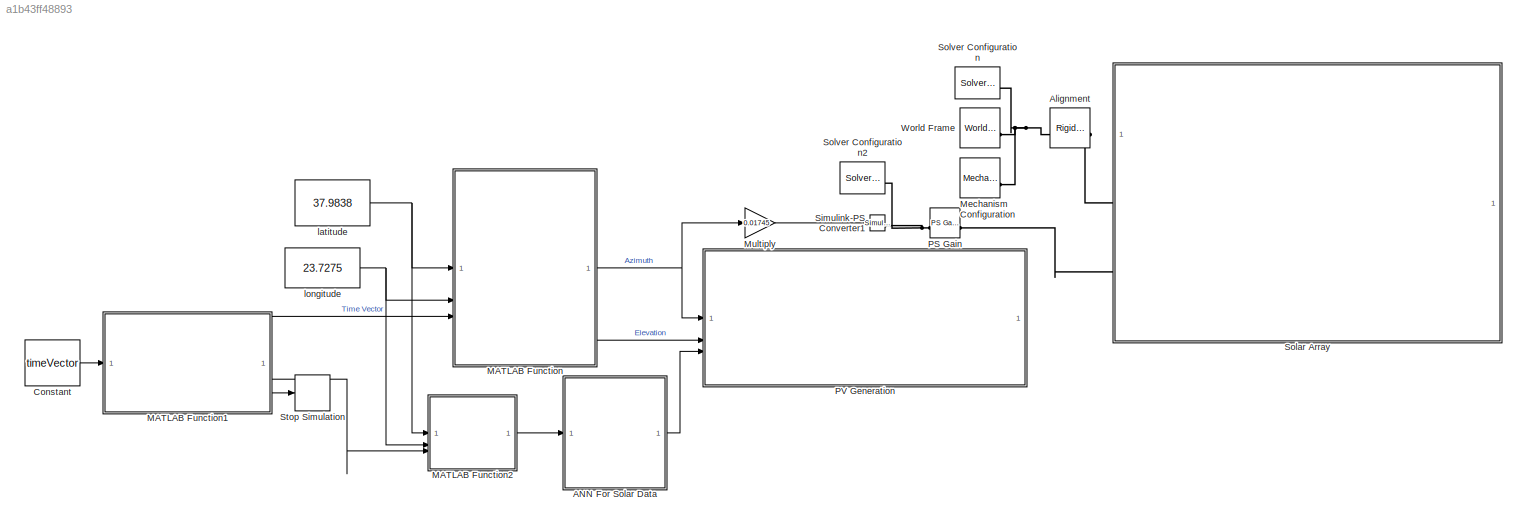
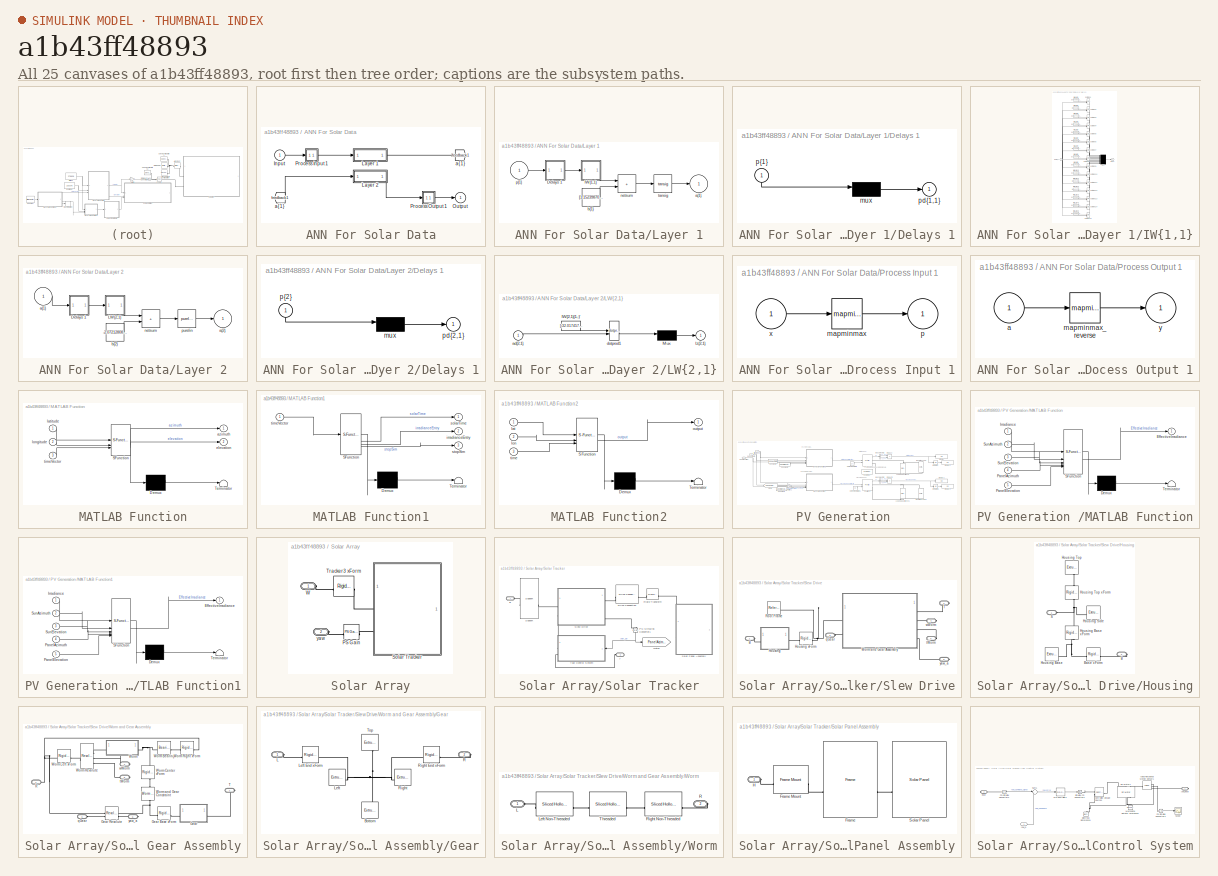
[diagram: thumbnail index - all 25 canvases of the model, root first then tree order]
MODEL slx_a1b43ff48893
KIND model
CONFIG AbsTol = auto
CONFIG EnableMultiTasking = off
CONFIG FixedStep = auto
CONFIG MaxStep = auto
CONFIG MinStep = auto
CONFIG PreLoadFcn = addpath(fullfile('WormAndGearConstraintSupport','Data'));\naddpath(fullfile('WormAndGearConstraintSupport','Scripts'));
CONFIG RelTol = 1e-3
CONFIG SampleTimeConstraint = Unconstrained
CONFIG SolverName = VariableStepAuto
CONFIG StartTime = 0.0
CONFIG StopTime = 120
WORKSPACE source: external: MATLAB File  (data not in archive)
BLOCK [SubSystem] ANN For Solar Data
BLOCK [From] ANN For Solar Data/ a{1} 
  GotoTag = feedback1
BLOCK [Inport] ANN For Solar Data/Input
  PortDimensions = 5
BLOCK [SubSystem] ANN For Solar Data/Layer 1
BLOCK [SubSystem] ANN For Solar Data/Layer 1/Delays 1
BLOCK [Mux] ANN For Solar Data/Layer 1/Delays 1/mux
  Inputs = 1
BLOCK [Outport] ANN For Solar Data/Layer 1/Delays 1/pd{1,1}
BLOCK [Inport] ANN For Solar Data/Layer 1/Delays 1/p{1}
  NameLocation = left
  PortDimensions = 5
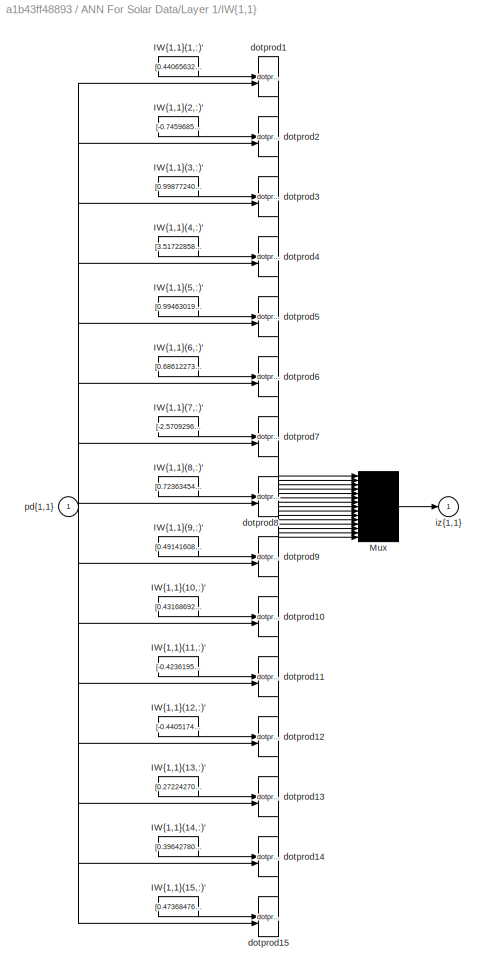
BLOCK [SubSystem] ANN For Solar Data/Layer 1/IW{1,1}
BLOCK [Constant] ANN For Solar Data/Layer 1/IW{1,1}/IW{1,1}(1,:)'
  Value = [0.440656326433005729459324584240675903856754302978515625;0.0082499057371298346874599616285195224918425083160400390625;-0.044099552646091534635619524351568543352186679840087890625;-0.00245166785449918260553214821584333549253642559051513671875;-1.5749584398746006019820242727291770279407501220703125]
BLOCK [Constant] ANN For Solar Data/Layer 1/IW{1,1}/IW{1,1}(10,:)'
  Value = [0.43168692246912721000029478091164492070674896240234375;0.034341159783117192194623612522264011204242706298828125;-0.0175976984815091157254851594871070119552314281463623046875;0.00372555310842444774299675458451019949279725551605224609375;-2.406642111020334429127842668094672262668609619140625]
BLOCK [Constant] ANN For Solar Data/Layer 1/IW{1,1}/IW{1,1}(11,:)'
  Value = [-0.42361955879776136413283893489278852939605712890625;1.10977633622082638709116508834995329380035400390625;-0.0835501550278960058992794301957474090158939361572265625;-2.61794715822211987443779435125179588794708251953125;-1.3518274325769723542833844476263038814067840576171875]
BLOCK [Constant] ANN For Solar Data/Layer 1/IW{1,1}/IW{1,1}(12,:)'
  Value = [-0.440517461325625137025241429000743664801120758056640625;-0.01151117447380817053470547506321963737718760967254638671875;0.045248099003977693133293769278679974377155303955078125;0.0032734020863622557973027227262718952260911464691162109375;1.4633094238269730436030613418552093207836151123046875]
BLOCK [Constant] ANN For Solar Data/Layer 1/IW{1,1}/IW{1,1}(13,:)'
  Value = [0.27224270352471890976886470525641925632953643798828125;-1.043836614745576429896800618735142052173614501953125;0.1896766694888755433456850596485310234129428863525390625;0.004672440805683443498796947324080974794924259185791015625;2.0409373300063844425267234328202903270721435546875]
BLOCK [Constant] ANN For Solar Data/Layer 1/IW{1,1}/IW{1,1}(14,:)'
  Value = [0.396427807374588436761797538565588183701038360595703125;-1.789625106557950484642560695647262036800384521484375;-2.682230989124238629273122569429688155651092529296875;8.9025806104754980907500794273801147937774658203125;-4.12817824967732338592441010405309498310089111328125]
BLOCK [Constant] ANN For Solar Data/Layer 1/IW{1,1}/IW{1,1}(15,:)'
  Value = [0.47368476745276277828367028632783330976963043212890625;-5.28165834570436576456131660961546003818511962890625;-0.581430249082355743439620709978044033050537109375;0.038405255237450079686123416422560694627463817596435546875;-2.768289678256326880045889993198215961456298828125]
BLOCK [Constant] ANN For Solar Data/Layer 1/IW{1,1}/IW{1,1}(2,:)'
  Value = [-0.7459685032199796506091615810873918235301971435546875;0.03958991653606432070677811907444265671074390411376953125;-0.06880802029727785262824824030758463777601718902587890625;-0.00192728313709774300155341819618115550838410854339599609375;-3.09817162747569074809916855883784592151641845703125]
BLOCK [Constant] ANN For Solar Data/Layer 1/IW{1,1}/IW{1,1}(3,:)'
  Value = [0.998772409858738274834877302055247128009796142578125;-0.119100118965819457006460879711084999144077301025390625;1.4734412523383586535175027165678329765796661376953125;0.1082246900612085227511016682910849340260028839111328125;-1.4500986091884959794384712949977256357669830322265625]
BLOCK [Constant] ANN For Solar Data/Layer 1/IW{1,1}/IW{1,1}(4,:)'
  Value = [3.517228586487414876415869002812542021274566650390625;-11.1530312237673268072057908284477889537811279296875;-0.03467422529560158783734635790096945129334926605224609375;-0.0253280237128823415559963905252516269683837890625;1.7180664031691634807685886698891408741474151611328125]
BLOCK [Constant] ANN For Solar Data/Layer 1/IW{1,1}/IW{1,1}(5,:)'
  Value = [0.9946301975619282753626748672104440629482269287109375;-0.1600082753687088743532740409136749804019927978515625;-1.521780916815078654735771124251186847686767578125;-0.1297648495221437048297019600795465521514415740966796875;-1.2414916778623013016158438404090702533721923828125]
BLOCK [Constant] ANN For Solar Data/Layer 1/IW{1,1}/IW{1,1}(6,:)'
  Value = [0.68612273992241623599142030798248015344142913818359375;-0.104982209681928895239622079316177405416965484619140625;-0.613241164669414917653966767829842865467071533203125;-0.05920533907694876252225668622486409731209278106689453125;1.0022019309219019067569433900644071400165557861328125]
BLOCK [Constant] ANN For Solar Data/Layer 1/IW{1,1}/IW{1,1}(7,:)'
  Value = [-2.57092967668512972778671610285528004169464111328125;-0.01478187733930325098441471709520556032657623291015625;-5.47678773959155140715893139713443815708160400390625;-0.6069798796372032345658453778014518320560455322265625;-1.7852945216614053425274732944671995937824249267578125]
BLOCK [Constant] ANN For Solar Data/Layer 1/IW{1,1}/IW{1,1}(8,:)'
  Value = [0.72363454345364075503965750613133423030376434326171875;-0.162701561217215739940655794271151535212993621826171875;0.385534273778422253986519763202522881329059600830078125;0.0214664874822279548582937280798432766459882259368896484375;1.186058790761077119668698287568986415863037109375]
BLOCK [Constant] ANN For Solar Data/Layer 1/IW{1,1}/IW{1,1}(9,:)'
  Value = [0.491416081983666319654702192565309815108776092529296875;-0.063370266488279758387847095946199260652065277099609375;-0.14774698755400617056210421651485376060009002685546875;-0.0228903924921436026373999794714109157212078571319580078125;0.65075914416514757387943745925440452992916107177734375]
BLOCK [Mux] ANN For Solar Data/Layer 1/IW{1,1}/Mux
  Inputs = 15
BLOCK [Reference] ANN For Solar Data/Layer 1/IW{1,1}/dotprod1  REF=neural/Weight Functions/dotprod
  SourceBlock = neural/Weight Functions/dotprod
  SourceType = DOTPROD
BLOCK [Reference] ANN For Solar Data/Layer 1/IW{1,1}/dotprod10  REF=neural/Weight Functions/dotprod
  SourceBlock = neural/Weight Functions/dotprod
  SourceType = DOTPROD
BLOCK [Reference] ANN For Solar Data/Layer 1/IW{1,1}/dotprod11  REF=neural/Weight Functions/dotprod
  SourceBlock = neural/Weight Functions/dotprod
  SourceType = DOTPROD
BLOCK [Reference] ANN For Solar Data/Layer 1/IW{1,1}/dotprod12  REF=neural/Weight Functions/dotprod
  SourceBlock = neural/Weight Functions/dotprod
  SourceType = DOTPROD
BLOCK [Reference] ANN For Solar Data/Layer 1/IW{1,1}/dotprod13  REF=neural/Weight Functions/dotprod
  SourceBlock = neural/Weight Functions/dotprod
  SourceType = DOTPROD
BLOCK [Reference] ANN For Solar Data/Layer 1/IW{1,1}/dotprod14  REF=neural/Weight Functions/dotprod
  SourceBlock = neural/Weight Functions/dotprod
  SourceType = DOTPROD
BLOCK [Reference] ANN For Solar Data/Layer 1/IW{1,1}/dotprod15  REF=neural/Weight Functions/dotprod
  SourceBlock = neural/Weight Functions/dotprod
  SourceType = DOTPROD
BLOCK [Reference] ANN For Solar Data/Layer 1/IW{1,1}/dotprod2  REF=neural/Weight Functions/dotprod
  SourceBlock = neural/Weight Functions/dotprod
  SourceType = DOTPROD
BLOCK [Reference] ANN For Solar Data/Layer 1/IW{1,1}/dotprod3  REF=neural/Weight Functions/dotprod
  SourceBlock = neural/Weight Functions/dotprod
  SourceType = DOTPROD
BLOCK [Reference] ANN For Solar Data/Layer 1/IW{1,1}/dotprod4  REF=neural/Weight Functions/dotprod
  SourceBlock = neural/Weight Functions/dotprod
  SourceType = DOTPROD
BLOCK [Reference] ANN For Solar Data/Layer 1/IW{1,1}/dotprod5  REF=neural/Weight Functions/dotprod
  SourceBlock = neural/Weight Functions/dotprod
  SourceType = DOTPROD
BLOCK [Reference] ANN For Solar Data/Layer 1/IW{1,1}/dotprod6  REF=neural/Weight Functions/dotprod
  SourceBlock = neural/Weight Functions/dotprod
  SourceType = DOTPROD
BLOCK [Reference] ANN For Solar Data/Layer 1/IW{1,1}/dotprod7  REF=neural/Weight Functions/dotprod
  SourceBlock = neural/Weight Functions/dotprod
  SourceType = DOTPROD
BLOCK [Reference] ANN For Solar Data/Layer 1/IW{1,1}/dotprod8  REF=neural/Weight Functions/dotprod
  SourceBlock = neural/Weight Functions/dotprod
  SourceType = DOTPROD
BLOCK [Reference] ANN For Solar Data/Layer 1/IW{1,1}/dotprod9  REF=neural/Weight Functions/dotprod
  SourceBlock = neural/Weight Functions/dotprod
  SourceType = DOTPROD
BLOCK [Outport] ANN For Solar Data/Layer 1/IW{1,1}/iz{1,1}
BLOCK [Inport] ANN For Solar Data/Layer 1/IW{1,1}/pd{1,1}
  PortDimensions = 5
BLOCK [Outport] ANN For Solar Data/Layer 1/a{1}
  InitialOutput = [0;0;0;0;0;0;0;0;0;0;0;0;0;0;0]
BLOCK [Constant] ANN For Solar Data/Layer 1/b{1}
  Value = [1.1523987025298774167225701603456400334835052490234375;0.7021964325858640609823169143055565655231475830078125;0.188737988975959225523837403670768253505229949951171875;-7.84046969712124397489105831482447683811187744140625;-0.118669448545166977826426091269240714609622955322265625;-0.049431980190826944887572125253427657298743724822998046875;3.929504687090930037385305695352144539356231689453125;0.046...<+443ch>
BLOCK [Sum] ANN For Solar Data/Layer 1/netsum
  IconShape = rectangular
  InputSameDT = on
  Inputs = 2
  OutDataTypeStr = Inherit: Same as first input
  SaturateOnIntegerOverflow = on
BLOCK [Inport] ANN For Solar Data/Layer 1/p{1}
  PortDimensions = 5
BLOCK [Reference] ANN For Solar Data/Layer 1/tansig  REF=neural/Transfer Functions/tansig
  SourceBlock = neural/Transfer Functions/tansig
  SourceType = TANSIG
BLOCK [SubSystem] ANN For Solar Data/Layer 2
BLOCK [SubSystem] ANN For Solar Data/Layer 2/Delays 1
BLOCK [Mux] ANN For Solar Data/Layer 2/Delays 1/mux
  Inputs = 1
BLOCK [Outport] ANN For Solar Data/Layer 2/Delays 1/pd{2,1}
BLOCK [Inport] ANN For Solar Data/Layer 2/Delays 1/p{2}
  NameLocation = left
  PortDimensions = 15
BLOCK [SubSystem] ANN For Solar Data/Layer 2/LW{2,1}
BLOCK [Constant] ANN For Solar Data/Layer 2/LW{2,1}/IW{2,1}(1,:)'
  Value = [-32.01745748567214633339972351677715778350830078125;1.31095166621215941660238968324847519397735595703125;0.42367758547066125540681014172150753438472747802734375;0.061422766084801093400269422772908001206815242767333984375;0.405265069982068959486554149407311342656612396240234375;2.479602125875937534971171771758235991001129150390625;0.07951932451130448720189036748706712387502193450927734375;2.053423...<+442ch>
BLOCK [Mux] ANN For Solar Data/Layer 2/LW{2,1}/Mux
  Inputs = 1
BLOCK [Inport] ANN For Solar Data/Layer 2/LW{2,1}/ad{2,1}
  PortDimensions = 15
BLOCK [Reference] ANN For Solar Data/Layer 2/LW{2,1}/dotprod1  REF=neural/Weight Functions/dotprod
  SourceBlock = neural/Weight Functions/dotprod
  SourceType = DOTPROD
BLOCK [Outport] ANN For Solar Data/Layer 2/LW{2,1}/lz{2,1}
BLOCK [Inport] ANN For Solar Data/Layer 2/a{1} 
  PortDimensions = 15
BLOCK [Outport] ANN For Solar Data/Layer 2/a{2}
BLOCK [Constant] ANN For Solar Data/Layer 2/b{2}
  Value = -2.072128088117164423920257831923663616180419921875
BLOCK [Sum] ANN For Solar Data/Layer 2/netsum
  IconShape = rectangular
  InputSameDT = on
  Inputs = 2
  OutDataTypeStr = Inherit: Same as first input
  SaturateOnIntegerOverflow = on
BLOCK [Reference] ANN For Solar Data/Layer 2/purelin  REF=neural/Transfer Functions/purelin
  SourceBlock = neural/Transfer Functions/purelin
  SourceType = PURELIN
BLOCK [Outport] ANN For Solar Data/Output
BLOCK [SubSystem] ANN For Solar Data/Process Input 1
BLOCK [Reference] ANN For Solar Data/Process Input 1/mapminmax  REF=neural/Processing Functions/mapminmax
  SourceBlock = neural/Processing Functions/mapminmax
  SourceType = MAPMINMAX Preprocess
BLOCK [Outport] ANN For Solar Data/Process Input 1/p
  PortDimensions = 5
BLOCK [Inport] ANN For Solar Data/Process Input 1/x
  PortDimensions = 5
BLOCK [SubSystem] ANN For Solar Data/Process Output 1
BLOCK [Inport] ANN For Solar Data/Process Output 1/a
  PortDimensions = 1
BLOCK [Reference] ANN For Solar Data/Process Output 1/mapminmax_reverse  REF=neural/Processing Functions/mapminmax_reverse
  SourceBlock = neural/Processing Functions/mapminmax_reverse
  SourceType = MAPMINMAX Reverse Process
BLOCK [Outport] ANN For Solar Data/Process Output 1/y
  PortDimensions = 1
BLOCK [Goto] ANN For Solar Data/a{1}
  GotoTag = feedback1
BLOCK [Reference] Alignment  REF=sm_lib/Frames and
Transforms/Rigid
Transform
  SourceBlock = sm_lib/Frames and\nTransforms/Rigid\nTransform
  SourceType = Rigid\nTransform
BLOCK [Constant] Constant
  Value = timeVector
BLOCK [SubSystem] MATLAB Function
  ErrorFcn = Stateflow.Translate.translate
  PermitHierarchicalResolution = ExplicitOnly
  SFBlockType = MATLAB Function
  TreatAsAtomicUnit = on
BLOCK [Demux] MATLAB Function/ Demux 
  Outputs = 1
BLOCK [S-Function] MATLAB Function/ SFunction 
  EnableBusSupport = on
  FunctionName = sf_sfun
  PortCounts = [3 3]
  SFcnIsStateOwnerBlock = off
  SFunctionDeploymentMode = off
  Tag = Stateflow S-Function 2
BLOCK [Terminator] MATLAB Function/ Terminator 
BLOCK [Outport] MATLAB Function/azimuth
BLOCK [Outport] MATLAB Function/elevation
  Port = 2
BLOCK [Inport] MATLAB Function/latitude
BLOCK [Inport] MATLAB Function/longitude
  Port = 2
BLOCK [Inport] MATLAB Function/timeVector
  Port = 3
BLOCK [SubSystem] MATLAB Function1
  ErrorFcn = Stateflow.Translate.translate
  PermitHierarchicalResolution = ExplicitOnly
  SFBlockType = MATLAB Function
  TreatAsAtomicUnit = on
BLOCK [Demux] MATLAB Function1/ Demux 
  Outputs = 1
BLOCK [S-Function] MATLAB Function1/ SFunction 
  EnableBusSupport = on
  FunctionName = sf_sfun
  PortCounts = [1 4]
  SFcnIsStateOwnerBlock = off
  SFunctionDeploymentMode = off
  Tag = Stateflow S-Function 1
BLOCK [Terminator] MATLAB Function1/ Terminator 
BLOCK [Outport] MATLAB Function1/irradianceEntry
  Port = 2
BLOCK [Outport] MATLAB Function1/solarTime
BLOCK [Outport] MATLAB Function1/stopSim
  Port = 3
BLOCK [Inport] MATLAB Function1/timeVector
BLOCK [SubSystem] MATLAB Function2
  ErrorFcn = Stateflow.Translate.translate
  PermitHierarchicalResolution = ExplicitOnly
  SFBlockType = MATLAB Function
  TreatAsAtomicUnit = on
BLOCK [Demux] MATLAB Function2/ Demux 
  Outputs = 1
BLOCK [S-Function] MATLAB Function2/ SFunction 
  EnableBusSupport = on
  FunctionName = sf_sfun
  PortCounts = [3 2]
  SFcnIsStateOwnerBlock = off
  SFunctionDeploymentMode = off
  Tag = Stateflow S-Function 9
BLOCK [Terminator] MATLAB Function2/ Terminator 
BLOCK [Inport] MATLAB Function2/lat
BLOCK [Inport] MATLAB Function2/lon
  Port = 2
BLOCK [Outport] MATLAB Function2/output
BLOCK [Inport] MATLAB Function2/time
  Port = 3
BLOCK [Reference] Mechanism Configuration  REF=sm_lib/Utilities/Mechanism
Configuration
  SourceBlock = sm_lib/Utilities/Mechanism\nConfiguration
  SourceType = Mechanism\nConfiguration
BLOCK [Gain] Multiply
  Gain = 0.01745
BLOCK [Reference] PS Gain  REF=fl_lib/Physical Signals/Functions/PS Gain
  SourceBlock = fl_lib/Physical Signals/Functions/PS Gain
  SourceType = PS Gain
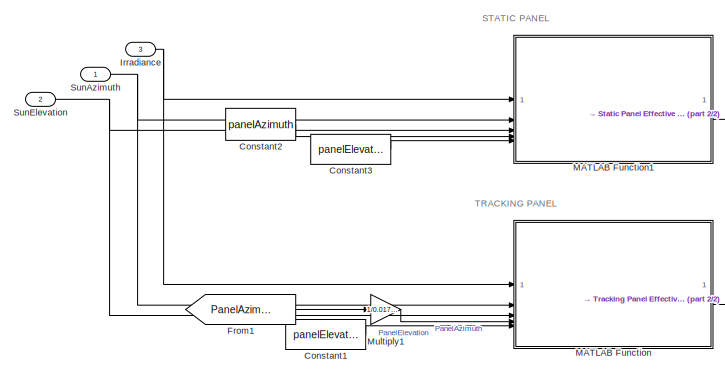
[diagram: PV Generation  - part 1/2, left side, full height]
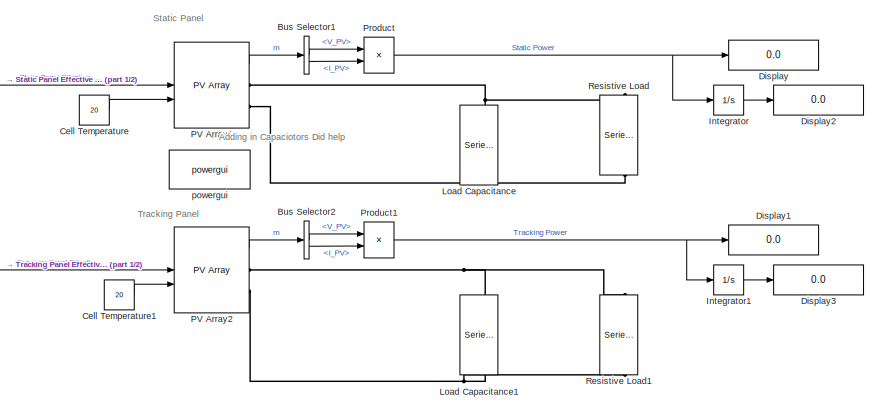
[diagram: PV Generation  - part 2/2, right side, full height]
BLOCK [SubSystem] PV Generation 
BLOCK [BusSelector] PV Generation /Bus Selector1
  OutputSignals = V_PV,I_PV
BLOCK [BusSelector] PV Generation /Bus Selector2
  OutputSignals = V_PV,I_PV
BLOCK [Constant] PV Generation /Cell Temperature
  Value = 20
BLOCK [Constant] PV Generation /Cell Temperature1
  Value = 20
BLOCK [Constant] PV Generation /Constant1
  Value = panelElevation
BLOCK [Constant] PV Generation /Constant2
  Value = panelAzimuth
BLOCK [Constant] PV Generation /Constant3
  Value = panelElevation
BLOCK [Display] PV Generation /Display
  Decimation = 1
BLOCK [Display] PV Generation /Display1
  Decimation = 1
BLOCK [Display] PV Generation /Display2
  Decimation = 1
BLOCK [Display] PV Generation /Display3
  Decimation = 1
BLOCK [From] PV Generation /From1
  GotoTag = PanelAzimuth
  NameLocation = top
  TagVisibility = global
BLOCK [Integrator] PV Generation /Integrator
BLOCK [Integrator] PV Generation /Integrator1
BLOCK [Inport] PV Generation /Irradiance
  Port = 3
BLOCK [Reference] PV Generation /Load Capacitance  REF=spsSeriesRLCBranchLib/Series RLC Branch
  LibrarySourceBlock = sps_lib/Passives/Series RLC Branch
  NameLocation = right
  SourceBlock = spsSeriesRLCBranchLib/Series RLC Branch
  SourceType = Series RLC Branch
BLOCK [Reference] PV Generation /Load Capacitance1  REF=spsSeriesRLCBranchLib/Series RLC Branch
  LibrarySourceBlock = sps_lib/Passives/Series RLC Branch
  NameLocation = right
  SourceBlock = spsSeriesRLCBranchLib/Series RLC Branch
  SourceType = Series RLC Branch
BLOCK [SubSystem] PV Generation /MATLAB Function
  ErrorFcn = Stateflow.Translate.translate
  PermitHierarchicalResolution = ExplicitOnly
  SFBlockType = MATLAB Function
  TreatAsAtomicUnit = on
BLOCK [Demux] PV Generation /MATLAB Function/ Demux 
  Outputs = 1
BLOCK [S-Function] PV Generation /MATLAB Function/ SFunction 
  EnableBusSupport = on
  FunctionName = sf_sfun
  PortCounts = [5 2]
  SFcnIsStateOwnerBlock = off
  SFunctionDeploymentMode = off
  Tag = Stateflow S-Function 6
BLOCK [Terminator] PV Generation /MATLAB Function/ Terminator 
BLOCK [Outport] PV Generation /MATLAB Function/EffectiveIrradiance
BLOCK [Inport] PV Generation /MATLAB Function/Irradiance
BLOCK [Inport] PV Generation /MATLAB Function/PanelAzimuth
  Port = 4
BLOCK [Inport] PV Generation /MATLAB Function/PanelElevation
  Port = 5
BLOCK [Inport] PV Generation /MATLAB Function/SunAzimuth
  Port = 2
BLOCK [Inport] PV Generation /MATLAB Function/SunElevation
  Port = 3
BLOCK [SubSystem] PV Generation /MATLAB Function1
  ErrorFcn = Stateflow.Translate.translate
  PermitHierarchicalResolution = ExplicitOnly
  SFBlockType = MATLAB Function
  TreatAsAtomicUnit = on
BLOCK [Demux] PV Generation /MATLAB Function1/ Demux 
  Outputs = 1
BLOCK [S-Function] PV Generation /MATLAB Function1/ SFunction 
  EnableBusSupport = on
  FunctionName = sf_sfun
  PortCounts = [5 2]
  SFcnIsStateOwnerBlock = off
  SFunctionDeploymentMode = off
  Tag = Stateflow S-Function 3
BLOCK [Terminator] PV Generation /MATLAB Function1/ Terminator 
BLOCK [Outport] PV Generation /MATLAB Function1/EffectiveIrradiance
BLOCK [Inport] PV Generation /MATLAB Function1/Irradiance
BLOCK [Inport] PV Generation /MATLAB Function1/PanelAzimuth
  Port = 4
BLOCK [Inport] PV Generation /MATLAB Function1/PanelElevation
  Port = 5
BLOCK [Inport] PV Generation /MATLAB Function1/SunAzimuth
  Port = 2
BLOCK [Inport] PV Generation /MATLAB Function1/SunElevation
  Port = 3
BLOCK [Gain] PV Generation /Multiply1
  Gain = 1/0.01745
BLOCK [Reference] PV Generation /PV Array1  REF=spsPVArrayLib/PV Array
  LibrarySourceBlock = sps_lib/Sources/PV Array
  SourceBlock = spsPVArrayLib/PV Array
  SourceType = PV array
BLOCK [Reference] PV Generation /PV Array2  REF=spsPVArrayLib/PV Array
  LibrarySourceBlock = sps_lib/Sources/PV Array
  SourceBlock = spsPVArrayLib/PV Array
  SourceType = PV array
BLOCK [Product] PV Generation /Product
BLOCK [Product] PV Generation /Product1
BLOCK [Reference] PV Generation /Resistive Load  REF=spsSeriesRLCBranchLib/Series RLC Branch
  LibrarySourceBlock = sps_lib/Passives/Series RLC Branch
  NameLocation = right
  SourceBlock = spsSeriesRLCBranchLib/Series RLC Branch
  SourceType = Series RLC Branch
BLOCK [Reference] PV Generation /Resistive Load1  REF=spsSeriesRLCBranchLib/Series RLC Branch
  LibrarySourceBlock = sps_lib/Passives/Series RLC Branch
  NameLocation = right
  SourceBlock = spsSeriesRLCBranchLib/Series RLC Branch
  SourceType = Series RLC Branch
BLOCK [Inport] PV Generation /SunAzimuth
BLOCK [Inport] PV Generation /SunElevation
  Port = 2
BLOCK [Reference] PV Generation /powergui  REF=sps_lib/powergui
  LibrarySourceBlock = sps_lib/powergui
  Priority = 1
  SourceBlock = sps_lib/powergui
  SourceType = PSB option menu block
BLOCK [Reference] Simulink-PS Converter1  REF=nesl_utility/Simulink-PS
Converter
  SourceBlock = nesl_utility/Simulink-PS\nConverter
  SourceType = Simulink-PS\nConverter
BLOCK [SubSystem] Solar Array
BLOCK [Reference] Solar Array/PS Gain  REF=fl_lib/Physical Signals/Functions/PS Gain
  SourceBlock = fl_lib/Physical Signals/Functions/PS Gain
  SourceType = PS Gain
BLOCK [SubSystem] Solar Array/Solar Tracker
BLOCK [PMIOPort] Solar Array/Solar Tracker/B
  Side = Left
BLOCK [Reference] Solar Array/Solar Tracker/Drive Connection  REF=WormAndGearConstraintLibrary/Drive Connection
  LibrarySourceBlock = sm_solar_tracker_lib/Drive Connection
  SourceBlock = WormAndGearConstraintLibrary/Drive Connection
  SourceType = Drive Connection
BLOCK [Goto] Solar Array/Solar Tracker/Goto2
  GotoTag = PanelAzimuth
  TagVisibility = global
BLOCK [Reference] Solar Array/Solar Tracker/PS-Simulink Converter1  REF=nesl_utility/PS-Simulink
Converter
  NameLocation = left
  SourceBlock = nesl_utility/PS-Simulink\nConverter
  SourceType = PS-Simulink\nConverter
BLOCK [Reference] Solar Array/Solar Tracker/Rigid Transform  REF=sm_lib/Frames and
Transforms/Rigid
Transform
  SourceBlock = sm_lib/Frames and\nTransforms/Rigid\nTransform
  SourceType = Rigid\nTransform
BLOCK [SubSystem] Solar Array/Solar Tracker/Slew Drive
  AncestorBlock = WormAndGearConstraintLibrary/Slew Drive
  LibrarySourceBlock = sm_solar_tracker_lib/Slew Drive
BLOCK [PMIOPort] Solar Array/Solar Tracker/Slew Drive/B
  Side = Left
BLOCK [SubSystem] Solar Array/Solar Tracker/Slew Drive/Housing
BLOCK [Reference] Solar Array/Solar Tracker/Slew Drive/Housing xForm  REF=sm_lib/Frames and
Transforms/Rigid
Transform
  SourceBlock = sm_lib/Frames and\nTransforms/Rigid\nTransform
  SourceType = Rigid\nTransform
BLOCK [PMIOPort] Solar Array/Solar Tracker/Slew Drive/Housing/B
  Port = 2
  Side = Right
BLOCK [Reference] Solar Array/Solar Tracker/Slew Drive/Housing/Base xForm  REF=sm_lib/Frames and
Transforms/Rigid
Transform
  SourceBlock = sm_lib/Frames and\nTransforms/Rigid\nTransform
  SourceType = Rigid\nTransform
BLOCK [Reference] Solar Array/Solar Tracker/Slew Drive/Housing/Housing Base  REF=sm_lib/Body Elements/Extruded Solid
  SourceBlock = sm_lib/Body Elements/Extruded Solid
  SourceType = Extruded Solid
BLOCK [Reference] Solar Array/Solar Tracker/Slew Drive/Housing/Housing Base xForm  REF=sm_lib/Frames and
Transforms/Rigid
Transform
  NameLocation = left
  SourceBlock = sm_lib/Frames and\nTransforms/Rigid\nTransform
  SourceType = Rigid\nTransform
BLOCK [Reference] Solar Array/Solar Tracker/Slew Drive/Housing/Housing Side  REF=sm_lib/Body Elements/Extruded Solid
  SourceBlock = sm_lib/Body Elements/Extruded Solid
  SourceType = Extruded Solid
BLOCK [Reference] Solar Array/Solar Tracker/Slew Drive/Housing/Housing Top  REF=sm_lib/Body Elements/Extruded Solid
  NameLocation = left
  SourceBlock = sm_lib/Body Elements/Extruded Solid
  SourceType = Extruded Solid
BLOCK [Reference] Solar Array/Solar Tracker/Slew Drive/Housing/Housing Top xForm  REF=sm_lib/Frames and
Transforms/Rigid
Transform
  NameLocation = left
  SourceBlock = sm_lib/Frames and\nTransforms/Rigid\nTransform
  SourceType = Rigid\nTransform
BLOCK [PMIOPort] Solar Array/Solar Tracker/Slew Drive/Housing/S
  Side = Left
BLOCK [Reference] Solar Array/Solar Tracker/Slew Drive/Root Frame  REF=sm_lib/Frames and
Transforms/Reference
Frame
  SourceBlock = sm_lib/Frames and\nTransforms/Reference\nFrame
  SourceType = Reference\nFrame
BLOCK [PMIOPort] Solar Array/Solar Tracker/Slew Drive/T
  Port = 2
  Side = Right
BLOCK [SubSystem] Solar Array/Solar Tracker/Slew Drive/Worm and Gear Assembly
BLOCK [SubSystem] Solar Array/Solar Tracker/Slew Drive/Worm and Gear Assembly/Gear
  AncestorBlock = WormAndGearConstraintLibrary/Sliced Hollow Cylinder
BLOCK [Reference] Solar Array/Solar Tracker/Slew Drive/Worm and Gear Assembly/Gear Base xForm  REF=sm_lib/Frames and
Transforms/Rigid
Transform
  SourceBlock = sm_lib/Frames and\nTransforms/Rigid\nTransform
  SourceType = Rigid\nTransform
BLOCK [Reference] Solar Array/Solar Tracker/Slew Drive/Worm and Gear Assembly/Gear Revolute  REF=sm_lib/Joints/Revolute Joint
  SourceBlock = sm_lib/Joints/Revolute Joint
  SourceType = Revolute Joint
BLOCK [Reference] Solar Array/Solar Tracker/Slew Drive/Worm and Gear Assembly/Gear/Bottom  REF=sm_lib/Body Elements/Extruded Solid
  NameLocation = left
  SourceBlock = sm_lib/Body Elements/Extruded Solid
  SourceType = Extruded Solid
BLOCK [PMIOPort] Solar Array/Solar Tracker/Slew Drive/Worm and Gear Assembly/Gear/L
  Side = Left
BLOCK [Reference] Solar Array/Solar Tracker/Slew Drive/Worm and Gear Assembly/Gear/Left  REF=sm_lib/Body Elements/Extruded Solid
  SourceBlock = sm_lib/Body Elements/Extruded Solid
  SourceType = Extruded Solid
BLOCK [Reference] Solar Array/Solar Tracker/Slew Drive/Worm and Gear Assembly/Gear/Left End xForm  REF=sm_lib/Frames and
Transforms/Rigid
Transform
  SourceBlock = sm_lib/Frames and\nTransforms/Rigid\nTransform
  SourceType = Rigid\nTransform
BLOCK [PMIOPort] Solar Array/Solar Tracker/Slew Drive/Worm and Gear Assembly/Gear/R
  Port = 2
  Side = Right
BLOCK [Reference] Solar Array/Solar Tracker/Slew Drive/Worm and Gear Assembly/Gear/Right  REF=sm_lib/Body Elements/Extruded Solid
  SourceBlock = sm_lib/Body Elements/Extruded Solid
  SourceType = Extruded Solid
BLOCK [Reference] Solar Array/Solar Tracker/Slew Drive/Worm and Gear Assembly/Gear/Right End xForm  REF=sm_lib/Frames and
Transforms/Rigid
Transform
  SourceBlock = sm_lib/Frames and\nTransforms/Rigid\nTransform
  SourceType = Rigid\nTransform
BLOCK [Reference] Solar Array/Solar Tracker/Slew Drive/Worm and Gear Assembly/Gear/Top  REF=sm_lib/Body Elements/Extruded Solid
  NameLocation = left
  SourceBlock = sm_lib/Body Elements/Extruded Solid
  SourceType = Extruded Solid
BLOCK [PMIOPort] Solar Array/Solar Tracker/Slew Drive/Worm and Gear Assembly/R
  Side = Left
BLOCK [PMIOPort] Solar Array/Solar Tracker/Slew Drive/Worm and Gear Assembly/T
  Port = 2
  Side = Right
BLOCK [SubSystem] Solar Array/Solar Tracker/Slew Drive/Worm and Gear Assembly/Worm
BLOCK [Reference] Solar Array/Solar Tracker/Slew Drive/Worm and Gear Assembly/Worm Bearing  REF=sm_lib/Joints/Bearing Joint
  SourceBlock = sm_lib/Joints/Bearing Joint
  SourceType = Bearing Joint
BLOCK [Reference] Solar Array/Solar Tracker/Slew Drive/Worm and Gear Assembly/Worm Center xForm  REF=sm_lib/Frames and
Transforms/Rigid
Transform
  NameLocation = right
  SourceBlock = sm_lib/Frames and\nTransforms/Rigid\nTransform
  SourceType = Rigid\nTransform
BLOCK [Reference] Solar Array/Solar Tracker/Slew Drive/Worm and Gear Assembly/Worm Left xForm  REF=sm_lib/Frames and
Transforms/Rigid
Transform
  SourceBlock = sm_lib/Frames and\nTransforms/Rigid\nTransform
  SourceType = Rigid\nTransform
BLOCK [Reference] Solar Array/Solar Tracker/Slew Drive/Worm and Gear Assembly/Worm Revolute  REF=sm_lib/Joints/Revolute Joint
  SourceBlock = sm_lib/Joints/Revolute Joint
  SourceType = Revolute Joint
BLOCK [Reference] Solar Array/Solar Tracker/Slew Drive/Worm and Gear Assembly/Worm Right xForm  REF=sm_lib/Frames and
Transforms/Rigid
Transform
  SourceBlock = sm_lib/Frames and\nTransforms/Rigid\nTransform
  SourceType = Rigid\nTransform
BLOCK [Reference] Solar Array/Solar Tracker/Slew Drive/Worm and Gear Assembly/Worm and Gear Constraint  REF=sm_lib/Gears and
Couplings/Gears/Worm and Gear
Constraint
  NameLocation = right
  SourceBlock = sm_lib/Gears and\nCouplings/Gears/Worm and Gear\nConstraint
  SourceType = Worm and Gear\nConstraint
BLOCK [PMIOPort] Solar Array/Solar Tracker/Slew Drive/Worm and Gear Assembly/Worm/L
  Side = Left
BLOCK [Reference] Solar Array/Solar Tracker/Slew Drive/Worm and Gear Assembly/Worm/Left Non-Threaded  REF=WormAndGearConstraintLibrary/Sliced Hollow Cylinder
  SourceBlock = WormAndGearConstraintLibrary/Sliced Hollow Cylinder
  SourceType = Sliced Hollow Cylinder
BLOCK [PMIOPort] Solar Array/Solar Tracker/Slew Drive/Worm and Gear Assembly/Worm/R
  Port = 2
  Side = Right
BLOCK [Reference] Solar Array/Solar Tracker/Slew Drive/Worm and Gear Assembly/Worm/Right Non-Threaded  REF=WormAndGearConstraintLibrary/Sliced Hollow Cylinder
  SourceBlock = WormAndGearConstraintLibrary/Sliced Hollow Cylinder
  SourceType = Sliced Hollow Cylinder
BLOCK [Reference] Solar Array/Solar Tracker/Slew Drive/Worm and Gear Assembly/Worm/Threaded  REF=WormAndGearConstraintLibrary/Sliced Hollow Cylinder
  SourceBlock = WormAndGearConstraintLibrary/Sliced Hollow Cylinder
  SourceType = Sliced Hollow Cylinder
BLOCK [PMIOPort] Solar Array/Solar Tracker/Slew Drive/Worm and Gear Assembly/qGear
  Port = 3
  Side = Left
BLOCK [PMIOPort] Solar Array/Solar Tracker/Slew Drive/Worm and Gear Assembly/tWorm
  Port = 5
  Side = Right
BLOCK [PMIOPort] Solar Array/Solar Tracker/Slew Drive/Worm and Gear Assembly/wWorm
  Port = 4
  Side = Right
BLOCK [PMIOPort] Solar Array/Solar Tracker/Slew Drive/Worm and Gear Assembly/yaw_a
  Port = 6
  Side = Right
BLOCK [PMIOPort] Solar Array/Solar Tracker/Slew Drive/qGear
  Port = 3
  Side = Left
BLOCK [PMIOPort] Solar Array/Solar Tracker/Slew Drive/tWorm
  Port = 5
  Side = Right
BLOCK [PMIOPort] Solar Array/Solar Tracker/Slew Drive/wWorm
  Port = 4
  Side = Right
BLOCK [PMIOPort] Solar Array/Solar Tracker/Slew Drive/yaw_a
  Port = 6
  Side = Right
BLOCK [SubSystem] Solar Array/Solar Tracker/Solar Panel Assembly
  PortSchema = {"entries":[{"content":{"sides":[{"content":{},"type":"ConnectorPlacement.EquallySpacedRectSide","uuid":"28e96d6c-ced9-4b71-a480-52ac00050cb3"},{"content":{"side":"RIGHT"},"type":"ConnectorPlacement.EquallySpacedRectSide","uuid":"e73e2f6b-4ad7-4755-ba56-d634eedf4e52"},{"content":{"connectorIds":["LConn1"],"side":"TOP"},"type":"ConnectorPlacement.EquallySpacedRectSide","uuid":"ac458beb-1119-4f13-b9...<+202ch>
BLOCK [Reference] Solar Array/Solar Tracker/Solar Panel Assembly/Frame  REF=WormAndGearConstraintLibrary/Frame
  LibrarySourceBlock = sm_solar_tracker_lib/Frame
  SourceBlock = WormAndGearConstraintLibrary/Frame
  SourceType = Frame
BLOCK [Reference] Solar Array/Solar Tracker/Solar Panel Assembly/Frame Mount  REF=WormAndGearConstraintLibrary/Frame Mount
  LibrarySourceBlock = sm_solar_tracker_lib/Frame Mount
  SourceBlock = WormAndGearConstraintLibrary/Frame Mount
  SourceType = Frame Mount
BLOCK [PMIOPort] Solar Array/Solar Tracker/Solar Panel Assembly/H
  Side = Left
BLOCK [Reference] Solar Array/Solar Tracker/Solar Panel Assembly/Solar Panel  REF=WormAndGearConstraintLibrary/Solar Panel
  LibrarySourceBlock = sm_solar_tracker_lib/Solar Panel
  SourceBlock = WormAndGearConstraintLibrary/Solar Panel
  SourceType = Solar Panel
BLOCK [Reference] Solar Array/Solar Tracker/Support  REF=WormAndGearConstraintLibrary/Support
  LibrarySourceBlock = sm_solar_tracker_lib/Support
  SourceBlock = WormAndGearConstraintLibrary/Support
  SourceType = Support
BLOCK [SubSystem] Solar Array/Solar Tracker/Yaw Control System
  NameLocation = top
BLOCK [Reference] Solar Array/Solar Tracker/Yaw Control System/Controlled Voltage Source1  REF=fl_lib/Electrical/Electrical Sources/Controlled Voltage
Source
  SourceBlock = fl_lib/Electrical/Electrical Sources/Controlled Voltage\nSource
  SourceType = Controlled Voltage\nSource
BLOCK [Reference] Solar Array/Solar Tracker/Yaw Control System/DC Motor1  REF=ee_lib/Electromechanical/Brushed Motors/DC Motor
  NameLocation = right
  SourceBlock = ee_lib/Electromechanical/Brushed Motors/DC Motor
  SourceType = DC Motor
BLOCK [Reference] Solar Array/Solar Tracker/Yaw Control System/Electrical Reference1  REF=fl_lib/Electrical/Electrical Elements/Electrical Reference
  NameLocation = right
  SourceBlock = fl_lib/Electrical/Electrical Elements/Electrical Reference
  SourceType = Electrical Reference
BLOCK [Reference] Solar Array/Solar Tracker/Yaw Control System/Ideal Rotational Motion Sensor1  REF=fl_lib/Mechanical/Mechanical Sensors/Ideal Rotational
Motion Sensor
  SourceBlock = fl_lib/Mechanical/Mechanical Sensors/Ideal Rotational\nMotion Sensor
  SourceType = Ideal Rotational\nMotion Sensor
BLOCK [Reference] Solar Array/Solar Tracker/Yaw Control System/Mechanical Rotational Reference1  REF=fl_lib/Mechanical/Rotational Elements/Mechanical
Rotational Reference
  NameLocation = right
  SourceBlock = fl_lib/Mechanical/Rotational Elements/Mechanical\nRotational Reference
  SourceType = Mechanical\nRotational Reference
BLOCK [Reference] Solar Array/Solar Tracker/Yaw Control System/PID Controller2  REF=slpidlib/PID Controller
  LibrarySourceBlock = simulink/Continuous/PID Controller
  SourceBlock = slpidlib/PID Controller
  SourceType = PID 1dof
BLOCK [Reference] Solar Array/Solar Tracker/Yaw Control System/PS-Simulink Converter2  REF=nesl_utility/PS-Simulink
Converter
  SourceBlock = nesl_utility/PS-Simulink\nConverter
  SourceType = PS-Simulink\nConverter
BLOCK [Reference] Solar Array/Solar Tracker/Yaw Control System/PS-Simulink Converter4  REF=nesl_utility/PS-Simulink
Converter
  SourceBlock = nesl_utility/PS-Simulink\nConverter
  SourceType = PS-Simulink\nConverter
BLOCK [Scope] Solar Array/Solar Tracker/Yaw Control System/Scope
  Floating = off
  NumInputPorts = 1
  ScopeSpecificationString = Simulink.scopes.TimeScopeBlockCfg('CurrentConfiguration', extmgr.ConfigurationSet(extmgr.Configuration('Core','General UI',true),extmgr.Configuration('Core','Source UI',true),extmgr.Configuration('Sources','WiredSimulink',true,'DataLoggingVariableName','ScopeData1'),extmgr.Configuration('Visuals','Time Domain',true,'SerializedDisplays',{struct('MinYLimReal','-25605.92854','MaxYLimReal','30952.7704...<+1500ch>
BLOCK [Reference] Solar Array/Solar Tracker/Yaw Control System/Simulink-PS Converter2  REF=nesl_utility/Simulink-PS
Converter
  SourceBlock = nesl_utility/Simulink-PS\nConverter
  SourceType = Simulink-PS\nConverter
BLOCK [Sum] Solar Array/Solar Tracker/Yaw Control System/Sum1
  Inputs = |+-
BLOCK [PMIOPort] Solar Array/Solar Tracker/Yaw Control System/input
  Port = 2
  Side = Right
BLOCK [Inport] Solar Array/Solar Tracker/Yaw Control System/yaw_a
BLOCK [PMIOPort] Solar Array/Solar Tracker/Yaw Control System/yaw_input
  Side = Right
BLOCK [PMIOPort] Solar Array/Solar Tracker/y
  NameLocation = top
  Port = 2
  Side = Left
BLOCK [Reference] Solar Array/Tracker3 xForm  REF=sm_lib/Frames and
Transforms/Rigid
Transform
  SourceBlock = sm_lib/Frames and\nTransforms/Rigid\nTransform
  SourceType = Rigid\nTransform
BLOCK [PMIOPort] Solar Array/W
  Side = Left
BLOCK [PMIOPort] Solar Array/yaw
  Port = 2
  Side = Left
BLOCK [Reference] Solver Configuration  REF=nesl_utility/Solver
Configuration
  SourceBlock = nesl_utility/Solver\nConfiguration
  SourceType = Solver\nConfiguration
BLOCK [Reference] Solver Configuration2  REF=nesl_utility/Solver
Configuration
  SourceBlock = nesl_utility/Solver\nConfiguration
  SourceType = Solver\nConfiguration
BLOCK [Stop] Stop Simulation
BLOCK [Reference] World Frame  REF=sm_lib/Frames and
Transforms/World Frame
  SourceBlock = sm_lib/Frames and\nTransforms/World Frame
  SourceType = World Frame
BLOCK [Constant] latitude
  Value = 37.9838
BLOCK [Constant] longitude
  Value = 23.7275
ANNOTATION PV Generation : Static Panel
ANNOTATION PV Generation : Tracking Panel
ANNOTATION PV Generation : Adding in Capaciotors Did help
ANNOTATION PV Generation : STATIC PANEL
ANNOTATION PV Generation : TRACKING PANEL
LINE ANN For Solar Data/ a{1} :1 -> ANN For Solar Data/Layer 2:1
LINE ANN For Solar Data/Input:1 -> ANN For Solar Data/Process Input 1:1
LINE ANN For Solar Data/Layer 1/Delays 1/mux:1 -> ANN For Solar Data/Layer 1/Delays 1/pd{1,1}:1
LINE ANN For Solar Data/Layer 1/Delays 1/p{1}:1 -> ANN For Solar Data/Layer 1/Delays 1/mux:1
LINE ANN For Solar Data/Layer 1/Delays 1:1 -> ANN For Solar Data/Layer 1/IW{1,1}:1
LINE ANN For Solar Data/Layer 1/IW{1,1}/IW{1,1}(1,:)':1 -> ANN For Solar Data/Layer 1/IW{1,1}/dotprod1:1
LINE ANN For Solar Data/Layer 1/IW{1,1}/IW{1,1}(10,:)':1 -> ANN For Solar Data/Layer 1/IW{1,1}/dotprod10:1
LINE ANN For Solar Data/Layer 1/IW{1,1}/IW{1,1}(11,:)':1 -> ANN For Solar Data/Layer 1/IW{1,1}/dotprod11:1
LINE ANN For Solar Data/Layer 1/IW{1,1}/IW{1,1}(12,:)':1 -> ANN For Solar Data/Layer 1/IW{1,1}/dotprod12:1
LINE ANN For Solar Data/Layer 1/IW{1,1}/IW{1,1}(13,:)':1 -> ANN For Solar Data/Layer 1/IW{1,1}/dotprod13:1
LINE ANN For Solar Data/Layer 1/IW{1,1}/IW{1,1}(14,:)':1 -> ANN For Solar Data/Layer 1/IW{1,1}/dotprod14:1
LINE ANN For Solar Data/Layer 1/IW{1,1}/IW{1,1}(15,:)':1 -> ANN For Solar Data/Layer 1/IW{1,1}/dotprod15:1
LINE ANN For Solar Data/Layer 1/IW{1,1}/IW{1,1}(2,:)':1 -> ANN For Solar Data/Layer 1/IW{1,1}/dotprod2:1
LINE ANN For Solar Data/Layer 1/IW{1,1}/IW{1,1}(3,:)':1 -> ANN For Solar Data/Layer 1/IW{1,1}/dotprod3:1
LINE ANN For Solar Data/Layer 1/IW{1,1}/IW{1,1}(4,:)':1 -> ANN For Solar Data/Layer 1/IW{1,1}/dotprod4:1
LINE ANN For Solar Data/Layer 1/IW{1,1}/IW{1,1}(5,:)':1 -> ANN For Solar Data/Layer 1/IW{1,1}/dotprod5:1
LINE ANN For Solar Data/Layer 1/IW{1,1}/IW{1,1}(6,:)':1 -> ANN For Solar Data/Layer 1/IW{1,1}/dotprod6:1
LINE ANN For Solar Data/Layer 1/IW{1,1}/IW{1,1}(7,:)':1 -> ANN For Solar Data/Layer 1/IW{1,1}/dotprod7:1
LINE ANN For Solar Data/Layer 1/IW{1,1}/IW{1,1}(8,:)':1 -> ANN For Solar Data/Layer 1/IW{1,1}/dotprod8:1
LINE ANN For Solar Data/Layer 1/IW{1,1}/IW{1,1}(9,:)':1 -> ANN For Solar Data/Layer 1/IW{1,1}/dotprod9:1
LINE ANN For Solar Data/Layer 1/IW{1,1}/Mux:1 -> ANN For Solar Data/Layer 1/IW{1,1}/iz{1,1}:1
LINE ANN For Solar Data/Layer 1/IW{1,1}/dotprod10:1 -> ANN For Solar Data/Layer 1/IW{1,1}/Mux:10
LINE ANN For Solar Data/Layer 1/IW{1,1}/dotprod11:1 -> ANN For Solar Data/Layer 1/IW{1,1}/Mux:11
LINE ANN For Solar Data/Layer 1/IW{1,1}/dotprod12:1 -> ANN For Solar Data/Layer 1/IW{1,1}/Mux:12
LINE ANN For Solar Data/Layer 1/IW{1,1}/dotprod13:1 -> ANN For Solar Data/Layer 1/IW{1,1}/Mux:13
LINE ANN For Solar Data/Layer 1/IW{1,1}/dotprod14:1 -> ANN For Solar Data/Layer 1/IW{1,1}/Mux:14
LINE ANN For Solar Data/Layer 1/IW{1,1}/dotprod15:1 -> ANN For Solar Data/Layer 1/IW{1,1}/Mux:15
LINE ANN For Solar Data/Layer 1/IW{1,1}/dotprod1:1 -> ANN For Solar Data/Layer 1/IW{1,1}/Mux:1
LINE ANN For Solar Data/Layer 1/IW{1,1}/dotprod2:1 -> ANN For Solar Data/Layer 1/IW{1,1}/Mux:2
LINE ANN For Solar Data/Layer 1/IW{1,1}/dotprod3:1 -> ANN For Solar Data/Layer 1/IW{1,1}/Mux:3
LINE ANN For Solar Data/Layer 1/IW{1,1}/dotprod4:1 -> ANN For Solar Data/Layer 1/IW{1,1}/Mux:4
LINE ANN For Solar Data/Layer 1/IW{1,1}/dotprod5:1 -> ANN For Solar Data/Layer 1/IW{1,1}/Mux:5
LINE ANN For Solar Data/Layer 1/IW{1,1}/dotprod6:1 -> ANN For Solar Data/Layer 1/IW{1,1}/Mux:6
LINE ANN For Solar Data/Layer 1/IW{1,1}/dotprod7:1 -> ANN For Solar Data/Layer 1/IW{1,1}/Mux:7
LINE ANN For Solar Data/Layer 1/IW{1,1}/dotprod8:1 -> ANN For Solar Data/Layer 1/IW{1,1}/Mux:8
LINE ANN For Solar Data/Layer 1/IW{1,1}/dotprod9:1 -> ANN For Solar Data/Layer 1/IW{1,1}/Mux:9
NET ANN For Solar Data/Layer 1/IW{1,1}/pd{1,1}:1 -> ANN For Solar Data/Layer 1/IW{1,1}/dotprod10:2, ANN For Solar Data/Layer 1/IW{1,1}/dotprod11:2, ANN For Solar Data/Layer 1/IW{1,1}/dotprod12:2, ANN For Solar Data/Layer 1/IW{1,1}/dotprod13:2, ANN For Solar Data/Layer 1/IW{1,1}/dotprod14:2, ANN For Solar Data/Layer 1/IW{1,1}/dotprod15:2, ANN For Solar Data/Layer 1/IW{1,1}/dotprod1:2, ANN For Solar Data/Layer 1/IW{1,1}/dotprod2:2, ANN For Solar Data/Layer 1/IW{1,1}/dotprod3:2, ANN For Solar Data/Layer 1/IW{1,1}/dotprod4:2, ANN For Solar Data/Layer 1/IW{1,1}/dotprod5:2, ANN For Solar Data/Layer 1/IW{1,1}/dotprod6:2, ANN For Solar Data/Layer 1/IW{1,1}/dotprod7:2, ANN For Solar Data/Layer 1/IW{1,1}/dotprod8:2, ANN For Solar Data/Layer 1/IW{1,1}/dotprod9:2
LINE ANN For Solar Data/Layer 1/IW{1,1}:1 -> ANN For Solar Data/Layer 1/netsum:1
LINE ANN For Solar Data/Layer 1/b{1}:1 -> ANN For Solar Data/Layer 1/netsum:2
LINE ANN For Solar Data/Layer 1/netsum:1 -> ANN For Solar Data/Layer 1/tansig:1
LINE ANN For Solar Data/Layer 1/p{1}:1 -> ANN For Solar Data/Layer 1/Delays 1:1
LINE ANN For Solar Data/Layer 1/tansig:1 -> ANN For Solar Data/Layer 1/a{1}:1
LINE ANN For Solar Data/Layer 1:1 -> ANN For Solar Data/a{1}:1
LINE ANN For Solar Data/Layer 2/Delays 1/mux:1 -> ANN For Solar Data/Layer 2/Delays 1/pd{2,1}:1
LINE ANN For Solar Data/Layer 2/Delays 1/p{2}:1 -> ANN For Solar Data/Layer 2/Delays 1/mux:1
LINE ANN For Solar Data/Layer 2/Delays 1:1 -> ANN For Solar Data/Layer 2/LW{2,1}:1
LINE ANN For Solar Data/Layer 2/LW{2,1}/IW{2,1}(1,:)':1 -> ANN For Solar Data/Layer 2/LW{2,1}/dotprod1:1
LINE ANN For Solar Data/Layer 2/LW{2,1}/Mux:1 -> ANN For Solar Data/Layer 2/LW{2,1}/lz{2,1}:1
LINE ANN For Solar Data/Layer 2/LW{2,1}/ad{2,1}:1 -> ANN For Solar Data/Layer 2/LW{2,1}/dotprod1:2
LINE ANN For Solar Data/Layer 2/LW{2,1}/dotprod1:1 -> ANN For Solar Data/Layer 2/LW{2,1}/Mux:1
LINE ANN For Solar Data/Layer 2/LW{2,1}:1 -> ANN For Solar Data/Layer 2/netsum:1
LINE ANN For Solar Data/Layer 2/a{1} :1 -> ANN For Solar Data/Layer 2/Delays 1:1
LINE ANN For Solar Data/Layer 2/b{2}:1 -> ANN For Solar Data/Layer 2/netsum:2
LINE ANN For Solar Data/Layer 2/netsum:1 -> ANN For Solar Data/Layer 2/purelin:1
LINE ANN For Solar Data/Layer 2/purelin:1 -> ANN For Solar Data/Layer 2/a{2}:1
LINE ANN For Solar Data/Layer 2:1 -> ANN For Solar Data/Process Output 1:1
LINE ANN For Solar Data/Process Input 1/mapminmax:1 -> ANN For Solar Data/Process Input 1/p:1
LINE ANN For Solar Data/Process Input 1/x:1 -> ANN For Solar Data/Process Input 1/mapminmax:1
LINE ANN For Solar Data/Process Input 1:1 -> ANN For Solar Data/Layer 1:1
LINE ANN For Solar Data/Process Output 1/a:1 -> ANN For Solar Data/Process Output 1/mapminmax_reverse:1
LINE ANN For Solar Data/Process Output 1/mapminmax_reverse:1 -> ANN For Solar Data/Process Output 1/y:1
LINE ANN For Solar Data/Process Output 1:1 -> ANN For Solar Data/Output:1
LINE ANN For Solar Data:1 -> PV Generation :3
LINE Constant:1 -> MATLAB Function1:1
LINE MATLAB Function1:1 -> MATLAB Function:3
LINE MATLAB Function1:2 -> MATLAB Function2:3
LINE MATLAB Function1:3 -> Stop Simulation:1
LINE MATLAB Function2:1 -> ANN For Solar Data:1
NET MATLAB Function:1 -> Multiply:1, PV Generation :1
LINE MATLAB Function:2 -> PV Generation :2
LINE Multiply:1 -> Simulink-PS Converter1:1
LINE PV Generation /Bus Selector1:1 -> PV Generation /Product:1
LINE PV Generation /Bus Selector1:2 -> PV Generation /Product:2
LINE PV Generation /Bus Selector2:1 -> PV Generation /Product1:1
LINE PV Generation /Bus Selector2:2 -> PV Generation /Product1:2
LINE PV Generation /Cell Temperature1:1 -> PV Generation /PV Array2:2
LINE PV Generation /Cell Temperature:1 -> PV Generation /PV Array1:2
LINE PV Generation /Constant1:1 -> PV Generation /MATLAB Function:5
LINE PV Generation /Constant2:1 -> PV Generation /MATLAB Function1:4
LINE PV Generation /Constant3:1 -> PV Generation /MATLAB Function1:5
LINE PV Generation /From1:1 -> PV Generation /Multiply1:1
LINE PV Generation /Integrator1:1 -> PV Generation /Display3:1
LINE PV Generation /Integrator:1 -> PV Generation /Display2:1
NET PV Generation /Irradiance:1 -> PV Generation /MATLAB Function1:1, PV Generation /MATLAB Function:1
LINE PV Generation /MATLAB Function1:1 -> PV Generation /PV Array1:1
LINE PV Generation /MATLAB Function:1 -> PV Generation /PV Array2:1
LINE PV Generation /Multiply1:1 -> PV Generation /MATLAB Function:4
LINE PV Generation /PV Array1:1 -> PV Generation /Bus Selector1:1
LINE PV Generation /PV Array2:1 -> PV Generation /Bus Selector2:1
NET PV Generation /Product1:1 -> PV Generation /Display1:1, PV Generation /Integrator1:1
NET PV Generation /Product:1 -> PV Generation /Display:1, PV Generation /Integrator:1
NET PV Generation /SunAzimuth:1 -> PV Generation /MATLAB Function1:2, PV Generation /MATLAB Function:2
NET PV Generation /SunElevation:1 -> PV Generation /MATLAB Function1:3, PV Generation /MATLAB Function:3
NET Solar Array/Solar Tracker/PS-Simulink Converter1:1 -> Solar Array/Solar Tracker/Goto2:1, Solar Array/Solar Tracker/Yaw Control System:1
LINE Solar Array/Solar Tracker/Yaw Control System/PID Controller2:1 -> Solar Array/Solar Tracker/Yaw Control System/Simulink-PS Converter2:1
LINE Solar Array/Solar Tracker/Yaw Control System/PS-Simulink Converter2:1 -> Solar Array/Solar Tracker/Yaw Control System/Sum1:1
LINE Solar Array/Solar Tracker/Yaw Control System/PS-Simulink Converter4:1 -> Solar Array/Solar Tracker/Yaw Control System/Scope:1
LINE Solar Array/Solar Tracker/Yaw Control System/Sum1:1 -> Solar Array/Solar Tracker/Yaw Control System/PID Controller2:1
LINE Solar Array/Solar Tracker/Yaw Control System/yaw_a:1 -> Solar Array/Solar Tracker/Yaw Control System/Sum1:2
NET latitude:1 -> MATLAB Function2:1, MATLAB Function:1
NET longitude:1 -> MATLAB Function2:2, MATLAB Function:2
PNET net1: Alignment:LConn1 -- Mechanism Configuration:RConn1 -- Solver Configuration:RConn1 -- World Frame:RConn1
PLINE Alignment:RConn1 -- Solar Array:LConn1
PNET net2: PS Gain:LConn1 -- Simulink-PS Converter1:RConn1 -- Solver Configuration2:RConn1
PLINE PS Gain:RConn1 -- Solar Array:LConn2
PNET net3: PV Generation /Load Capacitance1:LConn1 -- PV Generation /PV Array2:RConn1 -- PV Generation /Resistive Load1:LConn1
PNET net4: PV Generation /Load Capacitance1:RConn1 -- PV Generation /PV Array2:RConn2 -- PV Generation /Resistive Load1:RConn1
PNET net5: PV Generation /Load Capacitance:LConn1 -- PV Generation /PV Array1:RConn1 -- PV Generation /Resistive Load:LConn1
PNET net6: PV Generation /Load Capacitance:RConn1 -- PV Generation /PV Array1:RConn2 -- PV Generation /Resistive Load:RConn1
PLINE Solar Array/PS Gain:LConn1 -- Solar Array/yaw:RConn1
PLINE Solar Array/PS Gain:RConn1 -- Solar Array/Solar Tracker:LConn2
PLINE Solar Array/Solar Tracker/B:RConn1 -- Solar Array/Solar Tracker/Support:LConn1
PLINE Solar Array/Solar Tracker/Drive Connection:LConn1 -- Solar Array/Solar Tracker/Slew Drive:RConn1
PLINE Solar Array/Solar Tracker/Drive Connection:RConn1 -- Solar Array/Solar Tracker/Rigid Transform:LConn1
PLINE Solar Array/Solar Tracker/PS-Simulink Converter1:LConn1 -- Solar Array/Solar Tracker/Slew Drive:RConn4
PLINE Solar Array/Solar Tracker/Rigid Transform:RConn1 -- Solar Array/Solar Tracker/Solar Panel Assembly:LConn1
PLINE Solar Array/Solar Tracker/Slew Drive:LConn1 -- Solar Array/Solar Tracker/Support:RConn1
PLINE Solar Array/Solar Tracker/Slew Drive:LConn2 -- Solar Array/Solar Tracker/Yaw Control System:RConn1
PLINE Solar Array/Solar Tracker/Solar Panel Assembly/Frame Mount:LConn1 -- Solar Array/Solar Tracker/Solar Panel Assembly/Frame:LConn1
PLINE Solar Array/Solar Tracker/Solar Panel Assembly/Frame Mount:RConn1 -- Solar Array/Solar Tracker/Solar Panel Assembly/H:RConn1
PLINE Solar Array/Solar Tracker/Solar Panel Assembly/Frame:RConn1 -- Solar Array/Solar Tracker/Solar Panel Assembly/Solar Panel:LConn1
PLINE Solar Array/Solar Tracker/Yaw Control System/Controlled Voltage Source1:LConn1 -- Solar Array/Solar Tracker/Yaw Control System/DC Motor1:LConn1
PLINE Solar Array/Solar Tracker/Yaw Control System/Controlled Voltage Source1:RConn1 -- Solar Array/Solar Tracker/Yaw Control System/Simulink-PS Converter2:RConn1
PNET net7: Solar Array/Solar Tracker/Yaw Control System/Controlled Voltage Source1:RConn2 -- Solar Array/Solar Tracker/Yaw Control System/DC Motor1:RConn1 -- Solar Array/Solar Tracker/Yaw Control System/Electrical Reference1:LConn1
PLINE Solar Array/Solar Tracker/Yaw Control System/DC Motor1:LConn2 -- Solar Array/Solar Tracker/Yaw Control System/Ideal Rotational Motion Sensor1:LConn1
PNET net8: Solar Array/Solar Tracker/Yaw Control System/DC Motor1:RConn2 -- Solar Array/Solar Tracker/Yaw Control System/Ideal Rotational Motion Sensor1:RConn1 -- Solar Array/Solar Tracker/Yaw Control System/Mechanical Rotational Reference1:LConn1
PLINE Solar Array/Solar Tracker/Yaw Control System/Ideal Rotational Motion Sensor1:RConn2 -- Solar Array/Solar Tracker/Yaw Control System/PS-Simulink Converter4:LConn1
PLINE Solar Array/Solar Tracker/Yaw Control System/Ideal Rotational Motion Sensor1:RConn3 -- Solar Array/Solar Tracker/Yaw Control System/yaw_input:RConn1
PLINE Solar Array/Solar Tracker/Yaw Control System/PS-Simulink Converter2:LConn1 -- Solar Array/Solar Tracker/Yaw Control System/input:RConn1
PLINE Solar Array/Solar Tracker/Yaw Control System:RConn2 -- Solar Array/Solar Tracker/y:RConn1
PLINE Solar Array/Solar Tracker:LConn1 -- Solar Array/Tracker3 xForm:RConn1
PLINE Solar Array/Tracker3 xForm:LConn1 -- Solar Array/W:RConn1
note: NET lines group one-source signal fan-out (src -> all destinations, sorted); 1:1 wires keep LINE; PNET lines group multi-terminal physical nets as a canonical sorted terminal list (undirected conserving connections); 2-terminal nets keep the pairwise PLINE form
CHART MATLAB Function1 states=1 transitions=1
  STATE_LABEL 'eML_blk_kernel()'
  STATE_LABEL 'SCRIPT:\nfunction [solarTime, irradianceEntry, stopSim] = dataSync(timeVector)\n    % Sync solar position and solar irradiance with a counter \n    % using a persistent counter that increments every call.\n    persistent counter \n    % Initialize counter on first call\n    if isempty(counter)\n        counter = 1;\n    end\n    % For solarTime we still output the current time-of-day (seconds)\n    solarTim...<+448ch>'
CHART MATLAB Function states=1 transitions=1
  STATE_LABEL 'eML_blk_kernel()'
  STATE_LABEL 'SCRIPT:\nfunction [azimuth, elevation] = calculateSolarPosition(latitude, longitude, timeVector)\n    year = timeVector(1);\n    month = timeVector(2);\n    day = timeVector(3);\n    hour = timeVector(4);\n    minute = timeVector(5);\n    second = timeVector(6);\n\n    % Calculate Julian Date\n    JD = calculateJulianDate(year, month, day, hour, minute, second);\n    \n    % Calculate days since J2000.0\n    n...<+2418ch>'
CHART PV Generation /MATLAB Function1 states=1 transitions=1
  STATE_LABEL 'eML_blk_kernel()'
  STATE_LABEL 'SCRIPT:\n function EffectiveIrradiance = fcn(Irradiance,SunAzimuth,SunElevation,PanelAzimuth,PanelElevation)\n\n% Convert spherical angles to cartesian coordinates\nSunVector = [cosd(SunElevation)*sind(SunAzimuth), ...\n             cosd(SunElevation)*cosd(SunAzimuth), ...\n             sind(SunElevation)];\nPanelNormal = [cosd(PanelElevation)*sind(PanelAzimuth), ...\n               cosd(PanelElevation)*c...<+346ch>'
CHART PV Generation /MATLAB Function states=1 transitions=1
  STATE_LABEL 'eML_blk_kernel()'
  STATE_LABEL 'SCRIPT:\nfunction EffectiveIrradiance = fcn(Irradiance,SunAzimuth,SunElevation,PanelAzimuth,PanelElevation)\n\n    SunAzimuth = mod(SunAzimuth + 180, 360);\n    PanelAzimuth = mod(PanelAzimuth + 180, 360);\n\n% Convert spherical angles to cartesian coordinates\nSunVector = [cosd(SunElevation)*sind(SunAzimuth), ...\n             cosd(SunElevation)*cosd(SunAzimuth), ...\n             sind(SunElevation)];\nPan...<+440ch>'
CHART MATLAB Function2 states=1 transitions=1
  STATE_LABEL 'eML_blk_kernel()'
  STATE_LABEL 'SCRIPT:\nfunction output = generateInput(lat, lon,time)\n    % Get the current date and time\n    month = time(:,1);\n    day = time(:,2);\n    hour = time(:,3);\n    % Create the output array\n    output = [lat; lon; month; day; hour];\nend'
CHART  states=0 transitions=0
CHART  states=0 transitions=0
CHART  states=0 transitions=0
CHART  states=0 transitions=0
CHART  states=0 transitions=0
